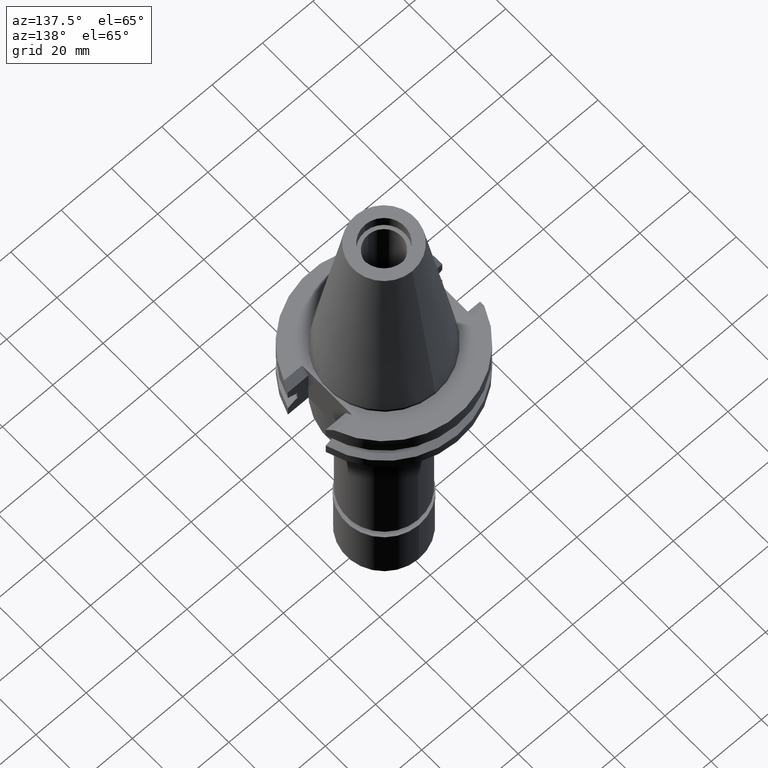
[diagram: clean part render]
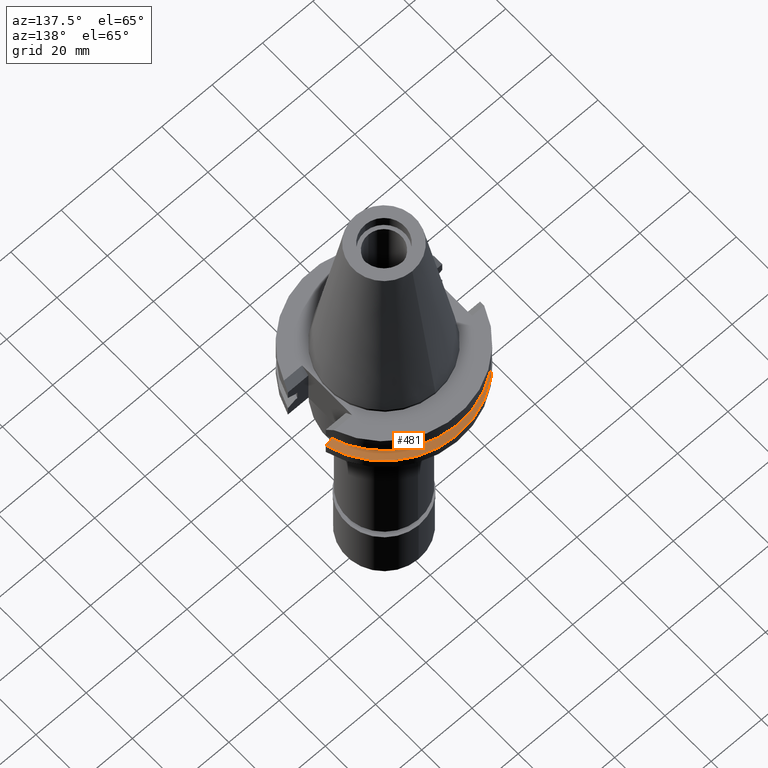
[diagram: same view with one face highlighted and labeled with its STEP entity id]
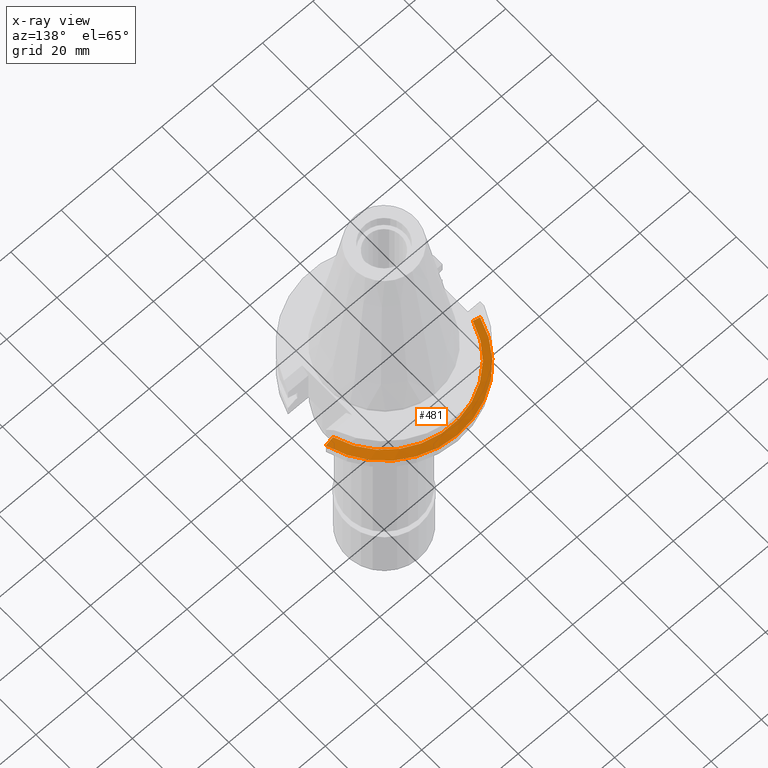
[diagram: x-ray of the same camera — body ghosted, the highlighted face saturated]
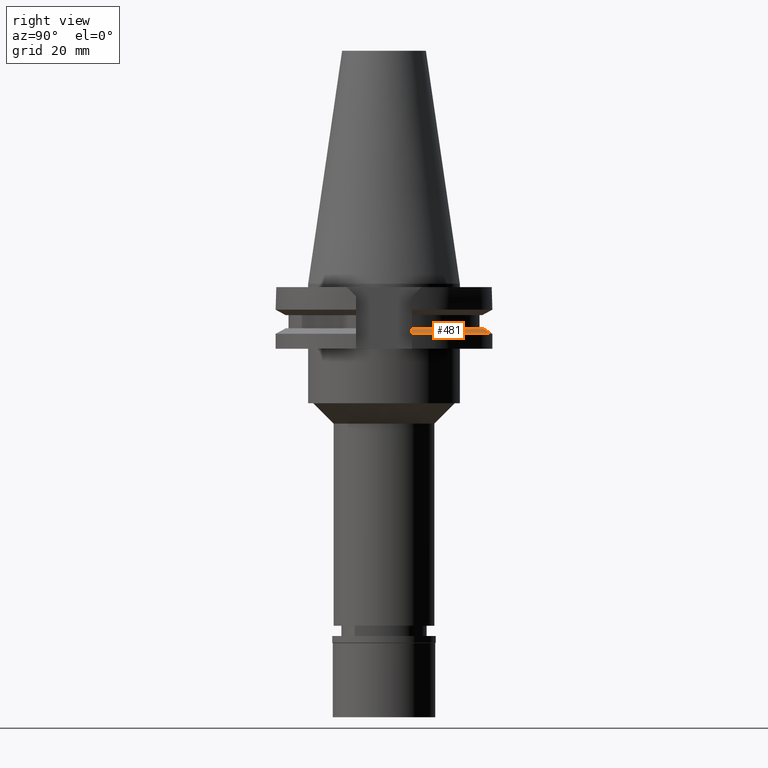
[diagram: same view with one face highlighted and labeled with its STEP entity id]
A machine part, auxiliary view. The second image highlights one B-rep face of the part: STEP entity #481.
The next image is the same camera in x-ray: the body ghosted, the highlighted face saturated — about 0% of this face is hidden behind the body in this view.
A second angle (right view) of the same face is appended — the face is thin or edge-on in the first view.
In plain terms, the highlighted conical surface has half-angle 60 deg.
Its self-contained STEP definition (entity closure, byte-faithful):
#82 = CARTESIAN_POINT ( 'NONE',  ( 27.78617704659999887, 8.189999360259999861, -13.04749999999999943 ) ) ;
#176 = CARTESIAN_POINT ( 'NONE',  ( 0.0000000000000000000, 0.0000000000000000000, -13.85058338454000015 ) ) ;
#281 = CARTESIAN_POINT ( 'NONE',  ( 30.67550165945999652, 8.189999874275001090, -14.65366564559000118 ) ) ;
#304 = CARTESIAN_POINT ( 'NONE',  ( -28.73208125446999972, 8.189999991756000242, -13.57181225837000049 ) ) ;
#435 = CONICAL_SURFACE ( 'NONE', #3016, 30.35901877526999826, 1.047197551196400456 ) ;
#454 = DIRECTION ( 'NONE',  ( 0.0000000000000000000, 0.0000000000000000000, -1.000000000000000000 ) ) ;
#481 = ADVANCED_FACE ( 'NONE', ( #1446 ), #435, .T. ) ;
#515 = VERTEX_POINT ( 'NONE', #3255 ) ;
#575 = B_SPLINE_CURVE_WITH_KNOTS ( 'NONE', 3,
 ( #2546, #800, #304, #2044, #2026, #3095 ),
 .UNSPECIFIED., .F., .F.,
 ( 4, 1, 1, 4 ),
 ( 0.0000000000000000000, 0.3333333333333000081, 0.6666666666667000474, 1.000000000000000000 ),
 .UNSPECIFIED. ) ;
#617 = DIRECTION ( 'NONE',  ( -0.9592008904639479638, 0.2827253998726845241, 0.0000000000000000000 ) ) ;
#800 = CARTESIAN_POINT ( 'NONE',  ( -28.09983853118999875, 8.190000190929000112, -13.22121105401000207 ) ) ;
#881 = EDGE_LOOP ( 'NONE', ( #3043, #976, #2915, #1152 ) ) ;
#882 = CARTESIAN_POINT ( 'NONE',  ( 30.67550165945999652, 8.189999874275001090, -14.65366564559000118 ) ) ;
#952 = EDGE_CURVE ( 'NONE', #2597, #2948, #1926, .T. ) ;
#976 = ORIENTED_EDGE ( 'NONE', *, *, #952, .F. ) ;
#1034 = EDGE_CURVE ( 'NONE', #2948, #2377, #2135, .T. ) ;
#1152 = ORIENTED_EDGE ( 'NONE', *, *, #1505, .T. ) ;
#1334 = DIRECTION ( 'NONE',  ( 0.0000000000000000000, 0.0000000000000000000, -1.000000000000000000 ) ) ;
#1357 = CARTESIAN_POINT ( 'NONE',  ( -30.67550162588999640, 8.190000000000997815, -14.65366676908000088 ) ) ;
#1390 = CARTESIAN_POINT ( 'NONE',  ( 28.09983866194999891, 8.189999360259999861, -13.22120420403000018 ) ) ;
#1446 = FACE_OUTER_BOUND ( 'NONE', #881, .T. ) ;
#1505 = EDGE_CURVE ( 'NONE', #515, #2377, #1951, .T. ) ;
#1580 = CARTESIAN_POINT ( 'NONE',  ( 0.0000000000000000000, 0.0000000000000000000, -13.04749999999999943 ) ) ;
#1584 = CARTESIAN_POINT ( 'NONE',  ( 29.69518440316999985, 8.189999973373000230, -14.10722580956999828 ) ) ;
#1808 = CARTESIAN_POINT ( 'NONE',  ( 27.78617704659999887, 8.189999360259999861, -13.04749999999999943 ) ) ;
#1926 = CIRCLE ( 'NONE', #2204, 31.74999999999998579 ) ;
#1951 = CIRCLE ( 'NONE', #2174, 28.96803755052999918 ) ;
#1997 = DIRECTION ( 'NONE',  ( 0.0000000000000000000, 0.0000000000000000000, -1.000000000000000000 ) ) ;
#2026 = CARTESIAN_POINT ( 'NONE',  ( -30.34708202151000123, 8.190000606419999940, -14.47047611133000089 ) ) ;
#2044 = CARTESIAN_POINT ( 'NONE',  ( -29.69518287097000098, 8.189999742461001375, -14.10722229457000054 ) ) ;
#2135 = B_SPLINE_CURVE_WITH_KNOTS ( 'NONE', 3,
 ( #882, #3216, #1584, #2152, #1390, #82 ),
 .UNSPECIFIED., .F., .F.,
 ( 4, 1, 1, 4 ),
 ( 0.0000000000000000000, 0.3333333333333000081, 0.6666666666667000474, 1.000000000000000000 ),
 .UNSPECIFIED. ) ;
#2152 = CARTESIAN_POINT ( 'NONE',  ( 28.73208633021999958, 8.190000281781999902, -13.57181791462000042 ) ) ;
#2174 = AXIS2_PLACEMENT_3D ( 'NONE', #1580, #1334, #617 ) ;
#2204 = AXIS2_PLACEMENT_3D ( 'NONE', #2519, #1997, #3047 ) ;
#2377 = VERTEX_POINT ( 'NONE', #1808 ) ;
#2495 = EDGE_CURVE ( 'NONE', #515, #2597, #575, .T. ) ;
#2519 = CARTESIAN_POINT ( 'NONE',  ( 0.0000000000000000000, 0.0000000000000000000, -14.65366676908000088 ) ) ;
#2546 = CARTESIAN_POINT ( 'NONE',  ( -27.78616453837999956, 8.190000190929000112, -13.04749999999999943 ) ) ;
#2597 = VERTEX_POINT ( 'NONE', #1357 ) ;
#2739 = DIRECTION ( 'NONE',  ( 0.0000000000000000000, -1.000000000000000000, 0.0000000000000000000 ) ) ;
#2915 = ORIENTED_EDGE ( 'NONE', *, *, #2495, .F. ) ;
#2948 = VERTEX_POINT ( 'NONE', #281 ) ;
#3016 = AXIS2_PLACEMENT_3D ( 'NONE', #176, #454, #2739 ) ;
#3043 = ORIENTED_EDGE ( 'NONE', *, *, #1034, .F. ) ;
#3047 = DIRECTION ( 'NONE',  ( -0.9661575315241073270, 0.2579527559055020958, 0.0000000000000000000 ) ) ;
#3095 = CARTESIAN_POINT ( 'NONE',  ( -30.67550162588999640, 8.190000000000997815, -14.65366676908000088 ) ) ;
#3216 = CARTESIAN_POINT ( 'NONE',  ( 30.34708810175999716, 8.189999874275001090, -14.47047284783999999 ) ) ;
#3255 = CARTESIAN_POINT ( 'NONE',  ( -27.78616453837999956, 8.190000190929000112, -13.04749999999999943 ) ) ;